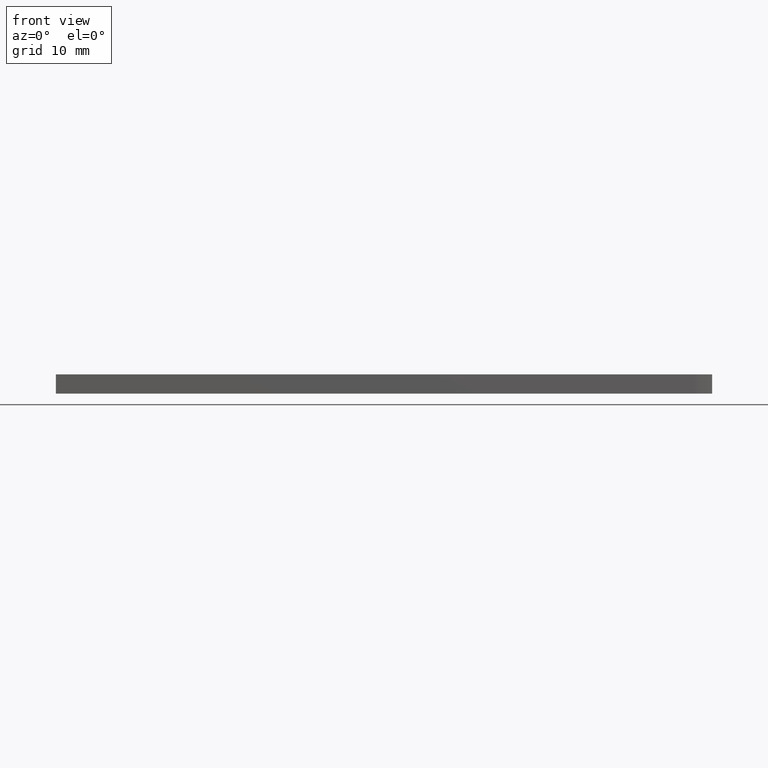
[diagram: clean part render]
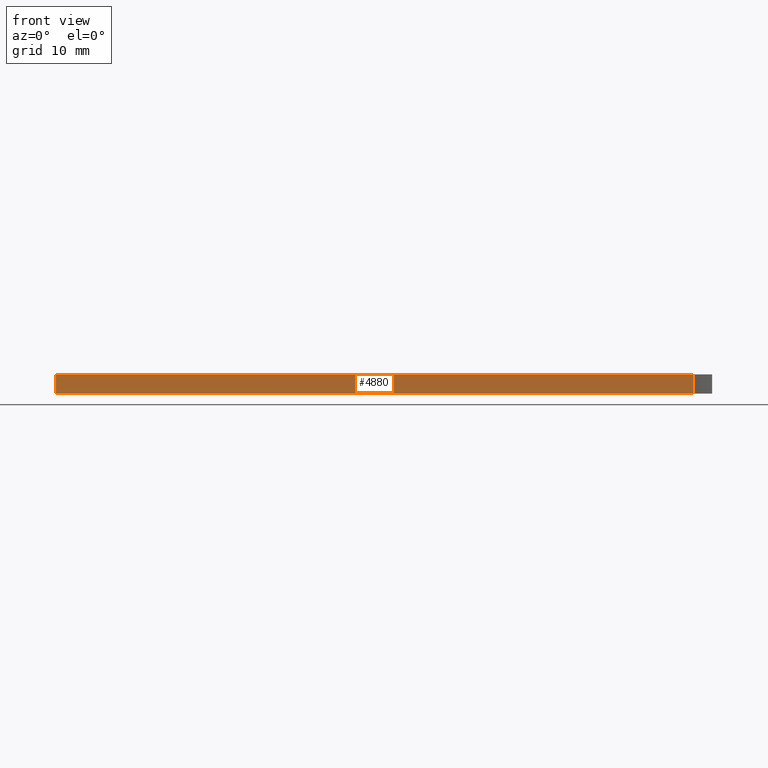
[diagram: same view with one face highlighted and labeled with its STEP entity id]
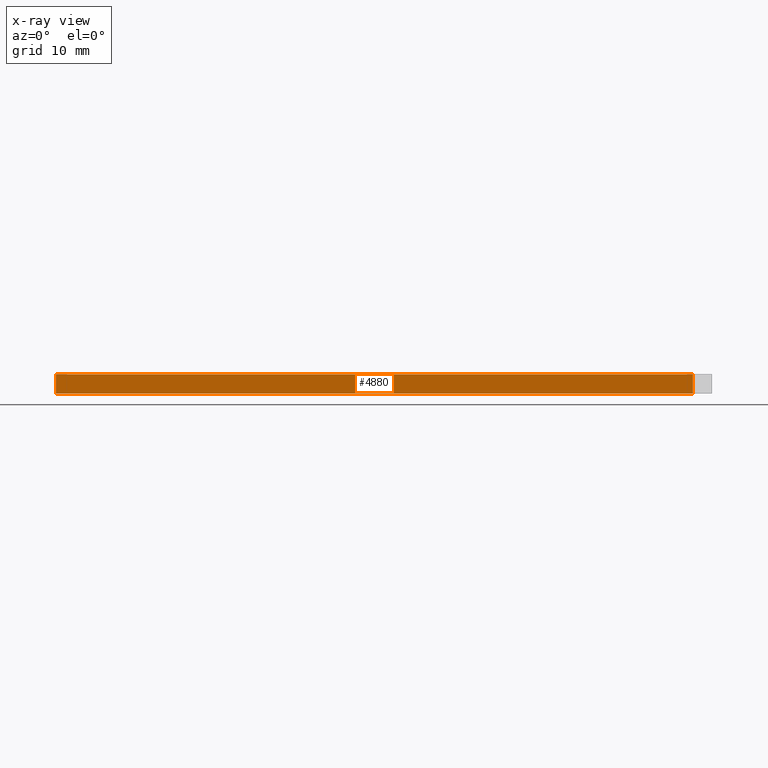
[diagram: x-ray of the same camera — body ghosted, the highlighted face saturated]
A machine part, front view. The second image highlights one B-rep face of the part: STEP entity #4880.
The next image is the same camera in x-ray: the body ghosted, the highlighted face saturated — about 0% of this face is hidden behind the body in this view.
In plain terms, the highlighted planar face has unit normal (0, -1, -0).
Its self-contained STEP definition (entity closure, byte-faithful):
#100=CARTESIAN_POINT('',(0.982842522725186,-65.5405475857204,
-8.10000000018866));
#110=VERTEX_POINT('',#100);
#160=CARTESIAN_POINT('',(0.,-65.5405475857204,-8.10000000019144));
#170=DIRECTION('',(1.,-1.57479355876184E-24,2.83162617508304E-12));
#180=VECTOR('',#170,1.);
#190=LINE('',#160,#180);
#200=CARTESIAN_POINT('',(73.6828428310876,-65.5405475857204,
-8.0999999999828));
#210=VERTEX_POINT('',#200);
#220=EDGE_CURVE('',#110,#210,#190,.T.);
#1990=CARTESIAN_POINT('',(73.6828428310939,-65.5405475857185,
-10.2999999999247));
#2000=VERTEX_POINT('',#1990);
#2030=CARTESIAN_POINT('',(0.,-65.5405475857185,-10.3000000000442));
#2040=DIRECTION('',(-1.,5.27893095999418E-25,-1.62231146262328E-12));
#2050=VECTOR('',#2040,1.);
#2060=LINE('',#2030,#2050);
#2070=CARTESIAN_POINT('',(0.982842522731415,-65.5405475857185,
-10.3000000000426));
#2080=VERTEX_POINT('',#2070);
#2090=EDGE_CURVE('',#2000,#2080,#2060,.T.);
#2900=CARTESIAN_POINT('',(73.6828428310647,-65.5405475857275,0.));
#2910=DIRECTION('',(-2.83162617508304E-12,-8.65946784951905E-13,1.));
#2920=VECTOR('',#2910,1.);
#2930=LINE('',#2900,#2920);
#2940=EDGE_CURVE('',#2000,#210,#2930,.T.);
#4720=CARTESIAN_POINT('',(72.6828431394459,-65.5405475857204,
-8.09999999998563));
#4730=DIRECTION('',(-8.77087012411711E-25,1.,8.65946784951905E-13));
#4740=DIRECTION('',(1.,-1.57495057008711E-24,2.83162617508304E-12));
#4750=AXIS2_PLACEMENT_3D('',#4720,#4730,#4740);
#4760=PLANE('',#4750);
#4770=CARTESIAN_POINT('',(0.982842522702249,-65.5405475857275,0.));
#4780=DIRECTION('',(-2.83162617508304E-12,-8.65946784951905E-13,1.));
#4790=VECTOR('',#4780,1.);
#4800=LINE('',#4770,#4790);
#4810=EDGE_CURVE('',#2080,#110,#4800,.T.);
#4820=ORIENTED_EDGE('',*,*,#4810,.T.);
#4830=ORIENTED_EDGE('',*,*,#2090,.T.);
#4840=ORIENTED_EDGE('',*,*,#2940,.F.);
#4850=ORIENTED_EDGE('',*,*,#220,.T.);
#4860=EDGE_LOOP('',(#4850,#4840,#4830,#4820));
#4870=FACE_OUTER_BOUND('',#4860,.T.);
#4880=ADVANCED_FACE('',(#4870),#4760,.T.);